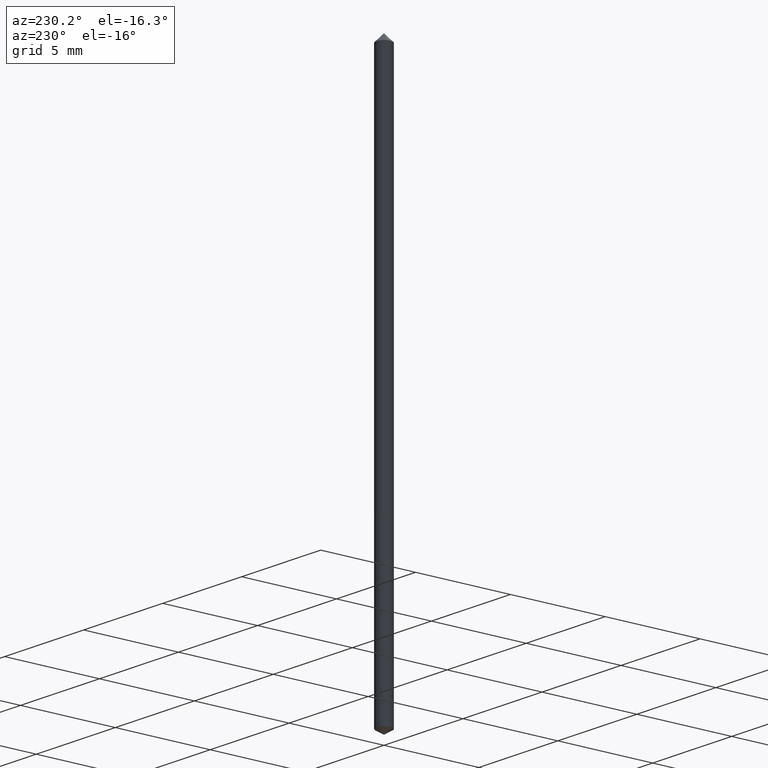
[diagram: clean part render]
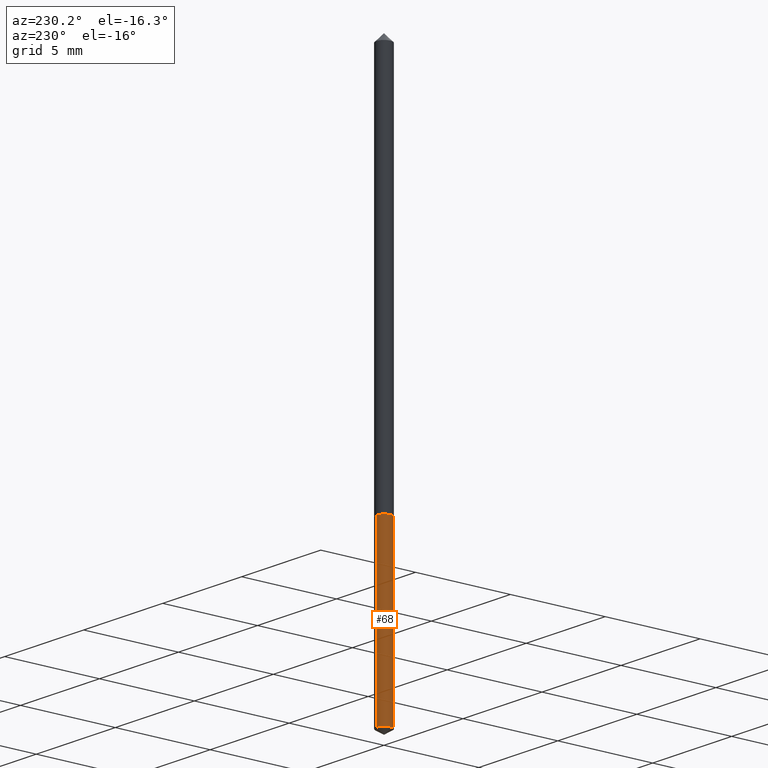
[diagram: same view with one face highlighted and labeled with its STEP entity id]
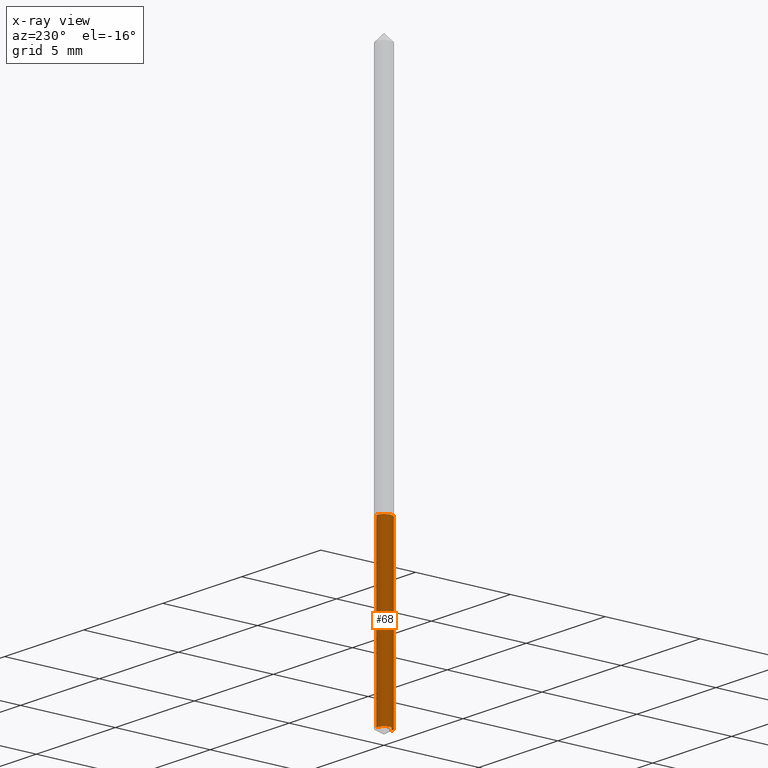
[diagram: x-ray of the same camera — body ghosted, the highlighted face saturated]
A machine part, auxiliary view. The second image highlights one B-rep face of the part: STEP entity #68.
The next image is the same camera in x-ray: the body ghosted, the highlighted face saturated — about 0% of this face is hidden behind the body in this view.
In plain terms, the highlighted cylindrical surface (edge-blend (fillet) strip) has radius 0.4 mm, axis along (-0, 0, 1).
Its self-contained STEP definition (entity closure, byte-faithful):
#5 = CARTESIAN_POINT ( 'NONE',  ( 1.119104808822357974E-16, 0.01574999999999714129, -0.8189000000000000723 ) ) ;
#10 = ORIENTED_EDGE ( 'NONE', *, *, #153, .T. ) ;
#16 = VERTEX_POINT ( 'NONE', #130 ) ;
#21 = AXIS2_PLACEMENT_3D ( 'NONE', #172, #169, #82 ) ;
#31 = DIRECTION ( 'NONE',  ( -6.982962677686265922E-15, -1.000000000000000000, 0.000000000000000000 ) ) ;
#34 = CIRCLE ( 'NONE', #295, 0.01575000000000000011 ) ;
#36 = CYLINDRICAL_SURFACE ( 'NONE', #83, 0.01575000000000000011 ) ;
#46 = CIRCLE ( 'NONE', #21, 0.01575000000000000011 ) ;
#58 = DIRECTION ( 'NONE',  ( -2.445460975394057853E-29, 3.491492552981671562E-15, 1.000000000000000000 ) ) ;
#64 = EDGE_CURVE ( 'NONE', #248, #73, #228, .T. ) ;
#65 = ORIENTED_EDGE ( 'NONE', *, *, #221, .T. ) ;
#68 = ADVANCED_FACE ( 'NONE', ( #346 ), #36, .T. ) ;
#73 = VERTEX_POINT ( 'NONE', #227 ) ;
#81 = VERTEX_POINT ( 'NONE', #265 ) ;
#82 = DIRECTION ( 'NONE',  ( -6.982962677686265922E-15, -1.000000000000000000, 0.000000000000000000 ) ) ;
#83 = AXIS2_PLACEMENT_3D ( 'NONE', #138, #58, #31 ) ;
#109 = DIRECTION ( 'NONE',  ( -2.445460975394057853E-29, 3.491492552981671562E-15, 1.000000000000000000 ) ) ;
#125 = CARTESIAN_POINT ( 'NONE',  ( 2.002594405385008597E-29, -2.859174068378652141E-15, -0.8189000000000000723 ) ) ;
#130 = CARTESIAN_POINT ( 'NONE',  ( -1.099816621735300606E-16, -0.01575000000000409406, -1.171636445250315628 ) ) ;
#137 = EDGE_LOOP ( 'NONE', ( #320, #10, #65, #258 ) ) ;
#138 = CARTESIAN_POINT ( 'NONE',  ( 2.002594405385008597E-29, -2.859174068378652141E-15, -0.8189000000000000723 ) ) ;
#153 = EDGE_CURVE ( 'NONE', #248, #16, #46, .T. ) ;
#167 = DIRECTION ( 'NONE',  ( -2.445460975394057853E-29, 3.491492552981671562E-15, 1.000000000000000000 ) ) ;
#169 = DIRECTION ( 'NONE',  ( -2.445460975394057853E-29, 3.491492552981671562E-15, 1.000000000000000000 ) ) ;
#172 = CARTESIAN_POINT ( 'NONE',  ( 2.865197616843877602E-29, -4.090750740135355442E-15, -1.171636445250315628 ) ) ;
#193 = LINE ( 'NONE', #263, #342 ) ;
#196 = CARTESIAN_POINT ( 'NONE',  ( 1.119104808822444256E-16, 0.01574999999999591310, -1.171636445250315628 ) ) ;
#206 = VECTOR ( 'NONE', #109, 39.37007874015748143 ) ;
#221 = EDGE_CURVE ( 'NONE', #16, #81, #193, .T. ) ;
#227 = CARTESIAN_POINT ( 'NONE',  ( 1.119104808822444749E-16, 0.01574999999999714129, -0.8189000000000000723 ) ) ;
#228 = LINE ( 'NONE', #5, #206 ) ;
#243 = DIRECTION ( 'NONE',  ( -6.982962677686265922E-15, -1.000000000000000000, 0.000000000000000000 ) ) ;
#248 = VERTEX_POINT ( 'NONE', #196 ) ;
#258 = ORIENTED_EDGE ( 'NONE', *, *, #285, .F. ) ;
#263 = CARTESIAN_POINT ( 'NONE',  ( -1.099816621735386641E-16, -0.01575000000000285894, -0.8189000000000000723 ) ) ;
#265 = CARTESIAN_POINT ( 'NONE',  ( -1.099816621735386641E-16, -0.01575000000000285894, -0.8189000000000000723 ) ) ;
#285 = EDGE_CURVE ( 'NONE', #73, #81, #34, .T. ) ;
#295 = AXIS2_PLACEMENT_3D ( 'NONE', #125, #299, #243 ) ;
#299 = DIRECTION ( 'NONE',  ( -2.445460975394057853E-29, 3.491492552981671562E-15, 1.000000000000000000 ) ) ;
#320 = ORIENTED_EDGE ( 'NONE', *, *, #64, .F. ) ;
#342 = VECTOR ( 'NONE', #167, 39.37007874015748143 ) ;
#346 = FACE_OUTER_BOUND ( 'NONE', #137, .T. ) ;